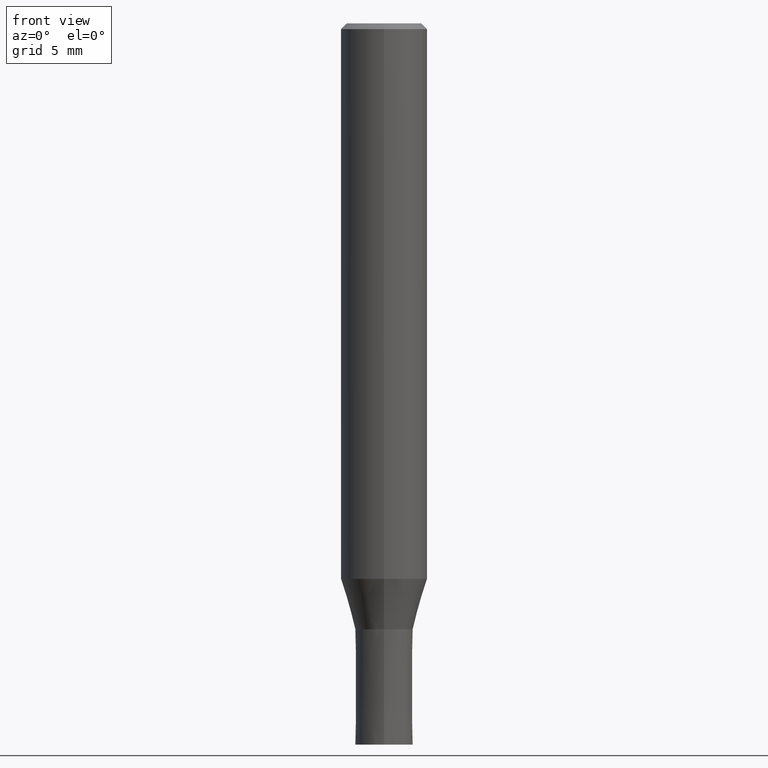
[diagram: clean part render]
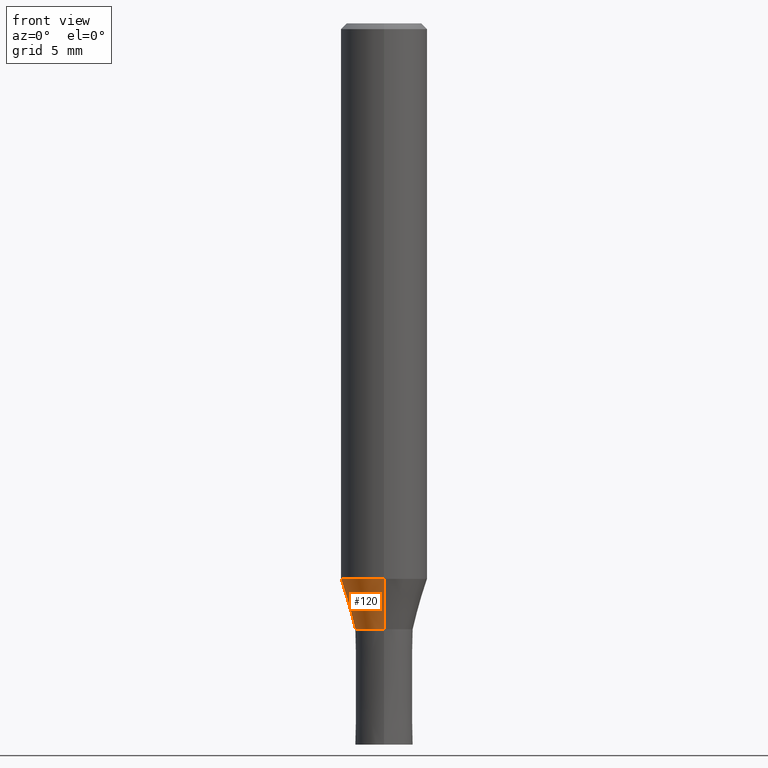
[diagram: same view with one face highlighted and labeled with its STEP entity id]
A machine part, front view. The second image highlights one B-rep face of the part: STEP entity #120.
In plain terms, the highlighted conical surface has half-angle 16.002 deg.
Its self-contained STEP definition (entity closure, byte-faithful):
#98=EDGE_CURVE('',#128,#112,#221,.T.);
#102=EDGE_CURVE('',#148,#182,#225,.T.);
#112=VERTEX_POINT('',#235);
#120=ADVANCED_FACE('',(#245),#246,.T.);
#128=VERTEX_POINT('',#256);
#138=EDGE_CURVE('',#148,#128,#267,.T.);
#148=VERTEX_POINT('',#278);
#182=VERTEX_POINT('',#317);
#184=EDGE_CURVE('',#112,#182,#319,.T.);
#221=CIRCLE('',#350,2.99995);
#225=CIRCLE('',#357,1.99995);
#235=CARTESIAN_POINT('',(0.0,2.99995,-38.513));
#245=FACE_OUTER_BOUND('',#378,.T.);
#246=CONICAL_SURFACE('',#379,2.49995,0.279284171542493);
#256=CARTESIAN_POINT('',(3.67375783114944E-016,-2.99995,-38.513));
#267=LINE('',#408,#409);
#278=CARTESIAN_POINT('',(2.44915147732706E-016,-1.99995,-42.0));
#317=CARTESIAN_POINT('',(0.0,1.99995,-42.0));
#319=LINE('',#473,#474);
#350=AXIS2_PLACEMENT_3D('',#497,#498,#499);
#357=AXIS2_PLACEMENT_3D('',#501,#502,#503);
#378=EDGE_LOOP('',(#528,#529,#530,#531));
#379=AXIS2_PLACEMENT_3D('',#532,#533,#534);
#408=CARTESIAN_POINT('',(3.06145465423825E-016,-2.49995,-40.2565));
#409=VECTOR('',#557,1.0);
#473=CARTESIAN_POINT('',(-3.06145465423825E-016,2.49995,-40.2565));
#474=VECTOR('',#623,1.0);
#497=CARTESIAN_POINT('',(0.0,0.0,-38.513));
#498=DIRECTION('',(0.0,0.0,-1.0));
#499=DIRECTION('',(0.0,1.0,0.0));
#501=CARTESIAN_POINT('',(0.0,0.0,-42.0));
#502=DIRECTION('',(0.0,0.0,-1.0));
#503=DIRECTION('',(0.0,1.0,0.0));
#528=ORIENTED_EDGE('',*,*,#184,.T.);
#529=ORIENTED_EDGE('',*,*,#102,.F.);
#530=ORIENTED_EDGE('',*,*,#138,.T.);
#531=ORIENTED_EDGE('',*,*,#98,.T.);
#532=CARTESIAN_POINT('',(0.0,0.0,-40.2565));
#533=DIRECTION('',(-0.0,-0.0,1.0));
#534=DIRECTION('',(0.0,1.0,0.0));
#557=DIRECTION('',(3.3758432755158E-017,-0.275667626987133,0.961253015304131));
#623=DIRECTION('',(3.3758432755158E-017,-0.275667626987133,-0.961253015304131));